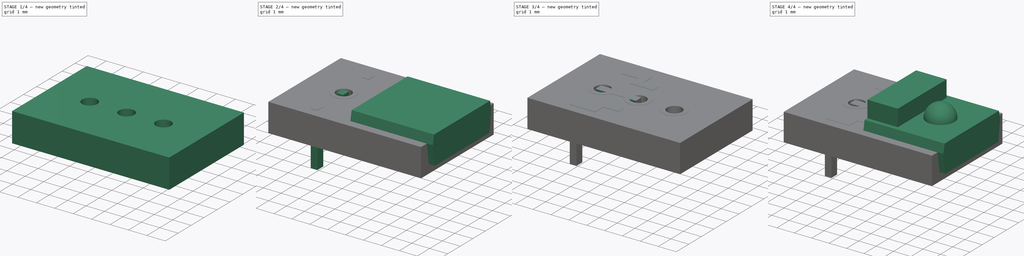
[diagram: build sequence overview — one tinted view per stage of 4, left to right]
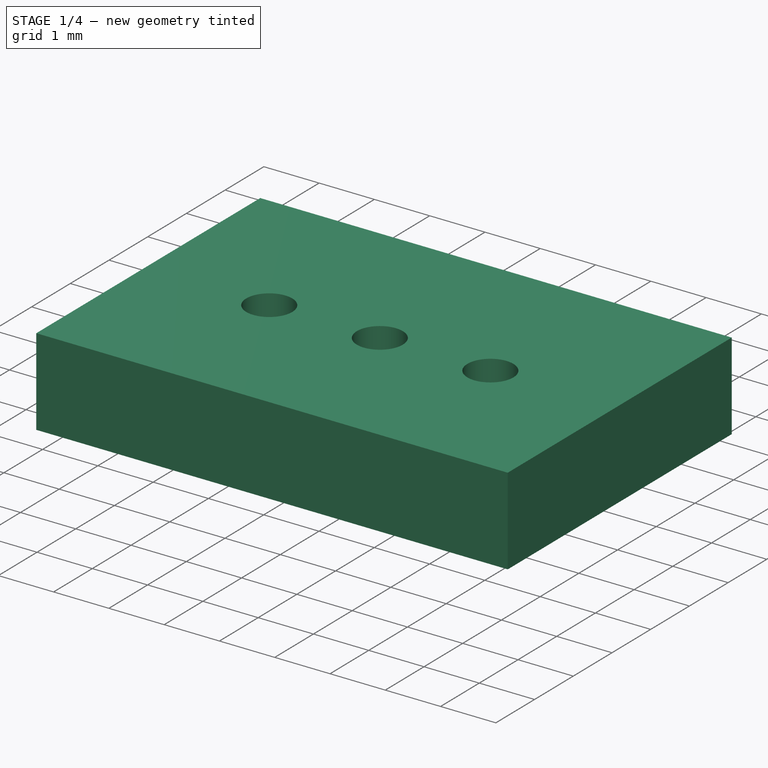
[diagram: stage 1 of 4 — iso view after this stage's code; geometry added in this stage tinted green]
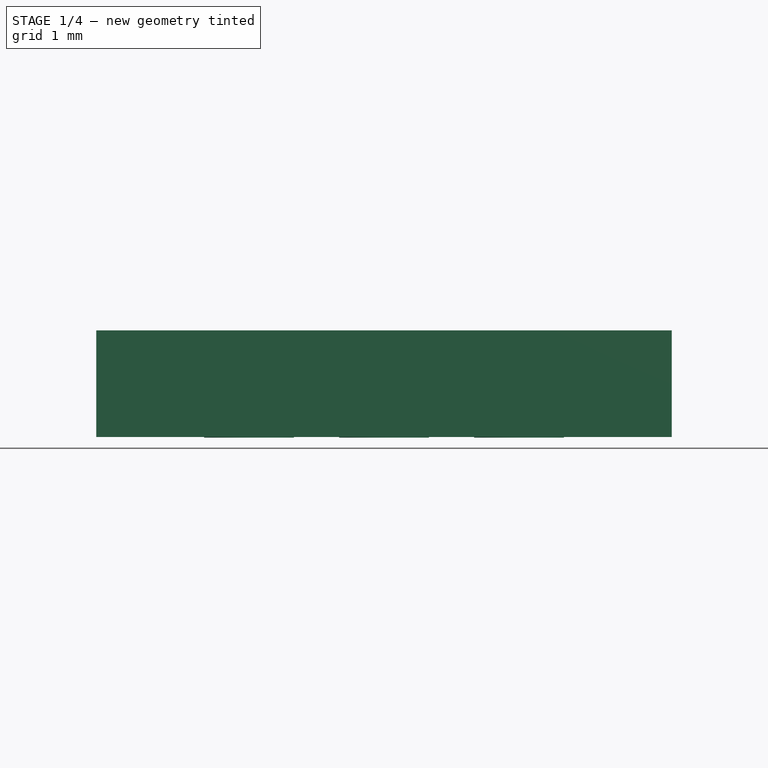
[diagram: stage 1 of 4 — front view after this stage's code; geometry added in this stage tinted green]
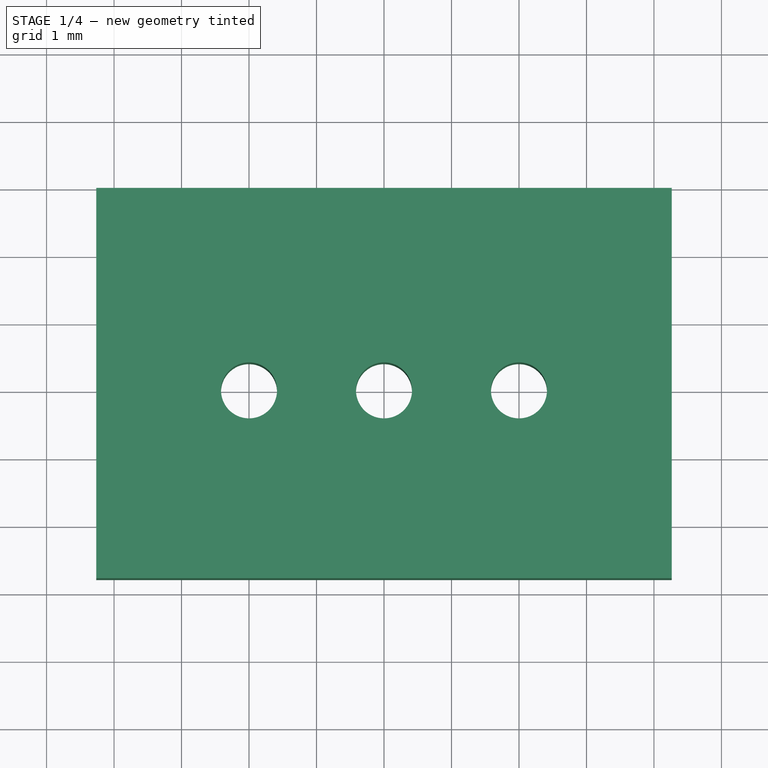
[diagram: stage 1 of 4 — top view after this stage's code; geometry added in this stage tinted green]
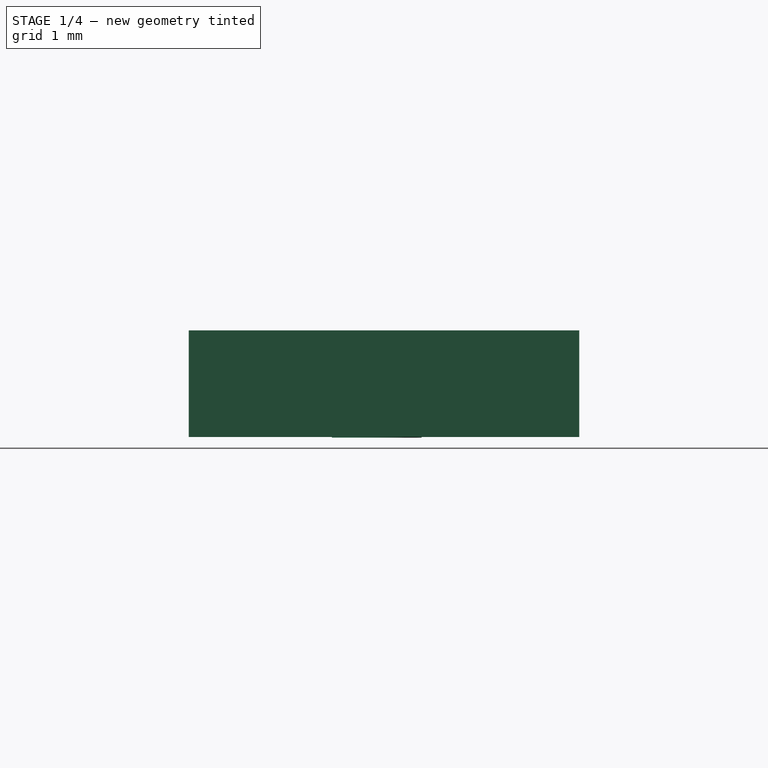
[diagram: stage 1 of 4 — right view after this stage's code; geometry added in this stage tinted green]
FCSTD DOCUMENT  (FreeCAD 0.18R4 (GitTag))
Label: TSL237
License: All rights reserved
LicenseURL: http://en.wikipedia.org/wiki/All_rights_reserved
objects: Part::FeaturePython×6, Sketcher::SketchObject×5, Part::Feature×4, PartDesign::ShapeBinder×3, Part::Compound×3, PartDesign::Pad×2, Part::Extrusion×2, PartDesign::Revolution×1, PartDesign::Body×1, Part::MultiFuse×1, App::DocumentObjectGroup×1
note: 31 computed .brp shape members not serialized (recipe doc carries the construction recipe); baked Part::Feature solids carry a one-line shape summary decoded from their .brp

FEATURE [Part::FeaturePython] BotPads  # a2plus imported part (geometry in sourceFile) (typed FeaturePython)
  fixedPosition = true
FEATURE [Part::FeaturePython] THPs  label="PTHs"  # a2plus imported part (geometry in sourceFile) (typed FeaturePython)
  fixedPosition = true
FEATURE [Part::FeaturePython] newPCB  label="Pcb"  # a2plus imported part (geometry in sourceFile) (typed FeaturePython)
  fixedPosition = true
FEATURE [App::DocumentObjectGroup] _TSL237S_LF__fp
  Group = -> [FFab_lines,Filk_lines,TopPads,BotPads,THPs,newPCB]
FEATURE [Part::Feature] Shape  label="Fusion_sp"
  shape: bbox 4.66 x 6.853 x 4.46 mm, 63 faces, 2 solids (baked)
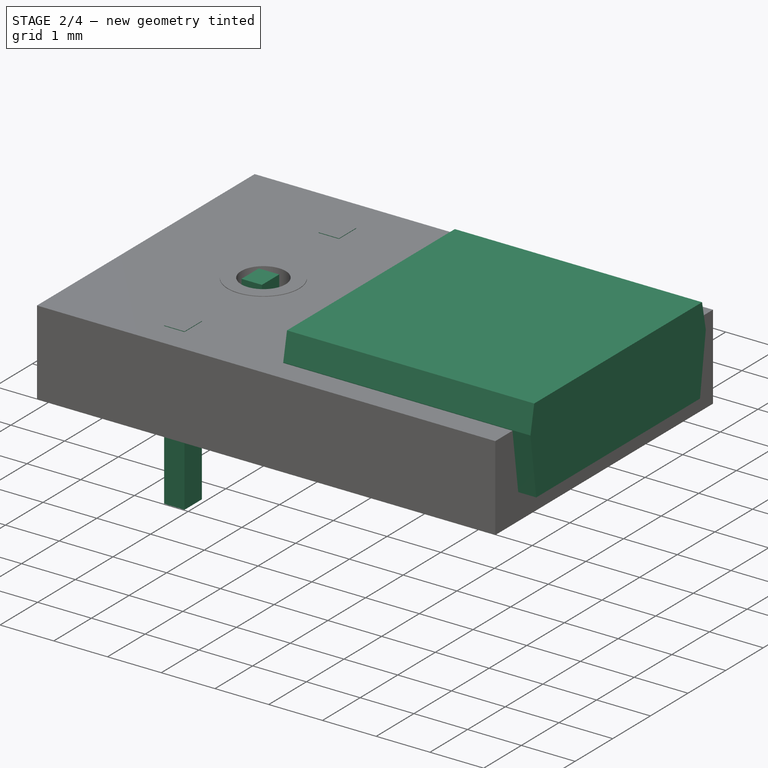
[diagram: stage 2 of 4 — iso view after this stage's code; geometry added in this stage tinted green]
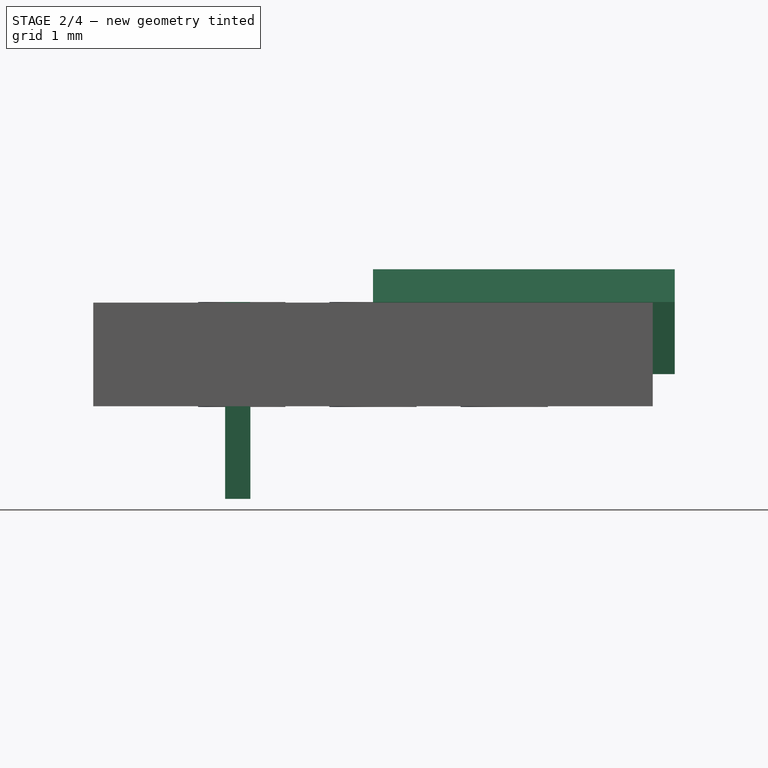
[diagram: stage 2 of 4 — front view after this stage's code; geometry added in this stage tinted green]
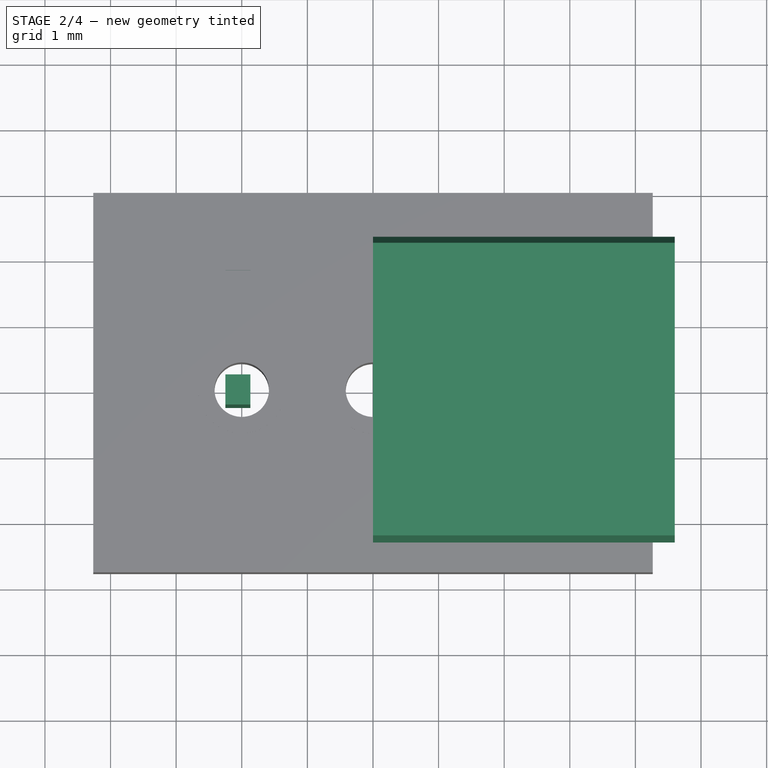
[diagram: stage 2 of 4 — top view after this stage's code; geometry added in this stage tinted green]
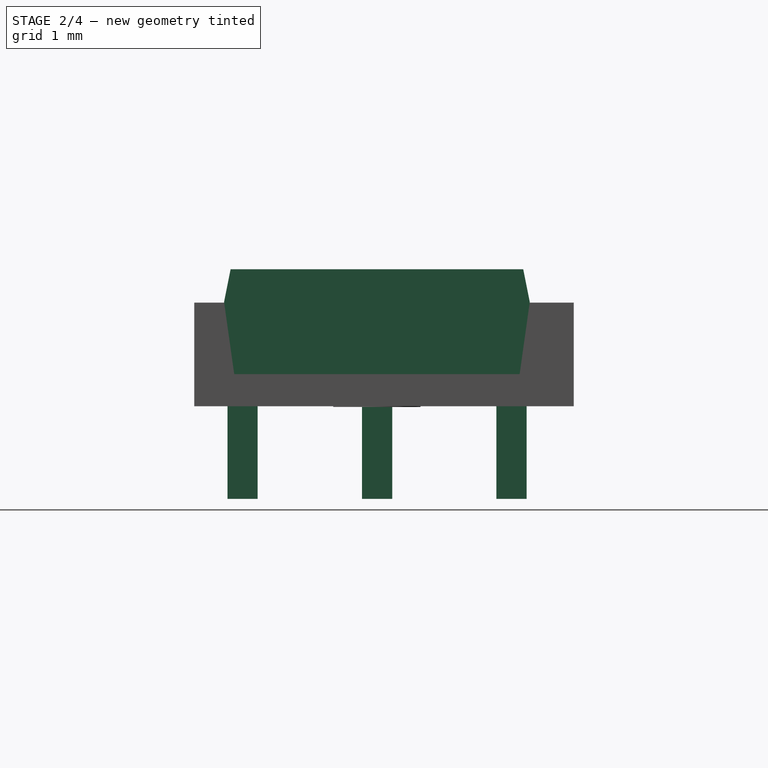
[diagram: stage 2 of 4 — right view after this stage's code; geometry added in this stage tinted green]
FEATURE [Sketcher::SketchObject] Sketch
  MapMode = 5
  Placement = pos=(0,0,0) rot=(0.57735,0.57735,0.57735;2.0944rad)
  Support = -> [YZ_Plane]
  sketch-geometry (9):
    g0: LineSegment [constr] StartX=2.33 StartY=0 StartZ=0 EndX=-2.33 EndY=0 EndZ=0
    g1: LineSegment StartX=-2.175 StartY=-1.1 StartZ=0 EndX=2.175 EndY=-1.1 EndZ=0
    g2: LineSegment StartX=-2.33 StartY=0 StartZ=0 EndX=-2.175 EndY=-1.1 EndZ=0
    g3: LineSegment StartX=2.175 StartY=-1.1 StartZ=0 EndX=2.33 EndY=0 EndZ=0
    g4: LineSegment [constr] StartX=0 StartY=0 StartZ=0 EndX=0 EndY=-1.1 EndZ=0
    g5: LineSegment StartX=-2.23 StartY=0.5 StartZ=0 EndX=2.23 EndY=0.5 EndZ=0
    g6: LineSegment StartX=2.23 StartY=0.5 StartZ=0 EndX=2.33 EndY=0 EndZ=0
    g7: LineSegment StartX=-2.23 StartY=0.5 StartZ=0 EndX=-2.33 EndY=0 EndZ=0
    g8: LineSegment [constr] StartX=0 StartY=0.5 StartZ=0 EndX=0 EndY=0 EndZ=0
  constraints (23):
    c: Horizontal(g0)
    c: DistanceX(g0,g0) = 4.66
    c: Symmetric(g0,g0,g-1)
    c: Horizontal(g1)
    c: Coincident(g2,g0)
    c: Coincident(g2,g1)
    c: Coincident(g3,g1)
    c: Coincident(g4,g-1)
    c: PointOnObject(g4,g-2)
    c: DistanceY(g4,g4) = 1.1
    c: Symmetric(g1,g1,g4)
    c: DistanceX(g1,g1) = 4.35
    c: Coincident(g0,g3)
    c: Horizontal(g5)
    c: DistanceX(g5,g5) = 4.46
    c: Vertical(g8)
    c: DistanceY(g8,g8) = 0.5
    c: Coincident(g8,g-1)
    c: Symmetric(g5,g5,g8)
    c: Coincident(g5,g7)
    c: Coincident(g7,g0)
    c: Coincident(g6,g5)
    c: Coincident(g6,g0)
FEATURE [PartDesign::Pad] Pad
  Length = 4.6
  Length2 = 100
  Placement = pos=(0,0,0) rot=(0.57735,0.57735,0.57735;2.0944rad)
  Profile = -> Sketch
  Type = 0
FEATURE [PartDesign::ShapeBinder] ShapeBinder002
  Support = -> [Extrude]
  TraceSupport = false
FEATURE [Sketcher::SketchObject] Sketch004
  MapMode = 5
  Support = -> [XY_Plane]
  sketch-geometry (12):
    g0: LineSegment StartX=-2.24904 StartY=2.28119 StartZ=0 EndX=-1.86904 EndY=2.28119 EndZ=0
    g1: LineSegment StartX=-1.86904 StartY=2.28119 StartZ=0 EndX=-1.86904 EndY=1.82119 EndZ=0
    g2: LineSegment StartX=-1.86904 StartY=1.82119 StartZ=0 EndX=-2.24904 EndY=1.82119 EndZ=0
    g3: LineSegment StartX=-2.24904 StartY=1.82119 StartZ=0 EndX=-2.24904 EndY=2.28119 EndZ=0
    g4: LineSegment StartX=-2.24963 StartY=0.233068 StartZ=0 EndX=-1.86963 EndY=0.233068 EndZ=0
    g5: LineSegment StartX=-1.86963 StartY=0.233068 StartZ=0 EndX=-1.86963 EndY=-0.226932 EndZ=0
    g6: LineSegment StartX=-1.86963 StartY=-0.226932 StartZ=0 EndX=-2.24963 EndY=-0.226932 EndZ=0
    g7: LineSegment StartX=-2.24963 StartY=-0.226932 StartZ=0 EndX=-2.24963 EndY=0.233068 EndZ=0
    g8: LineSegment StartX=-2.25304 StartY=-1.81802 StartZ=0 EndX=-1.87304 EndY=-1.81802 EndZ=0
    g9: LineSegment StartX=-1.87304 StartY=-1.81802 StartZ=0 EndX=-1.87304 EndY=-2.27802 EndZ=0
    g10: LineSegment StartX=-1.87304 StartY=-2.27802 StartZ=0 EndX=-2.25304 EndY=-2.27802 EndZ=0
    g11: LineSegment StartX=-2.25304 StartY=-2.27802 StartZ=0 EndX=-2.25304 EndY=-1.81802 EndZ=0
  constraints (30):
    c: Coincident(g0,g1)
    c: Coincident(g1,g2)
    c: Coincident(g2,g3)
    c: Coincident(g3,g0)
    c: Horizontal(g0)
    c: Horizontal(g2)
    c: Vertical(g1)
    c: Vertical(g3)
    c: DistanceX(g2,g2) = 0.38
    c: DistanceY(g1,g1) = 0.46
    c: Coincident(g4,g5)
    c: Coincident(g5,g6)
    c: Coincident(g6,g7)
    c: Coincident(g7,g4)
    c: Horizontal(g4)
    c: Horizontal(g6)
    c: Vertical(g5)
    c: Vertical(g7)
    c: Coincident(g8,g9)
    c: Coincident(g9,g10)
    c: Coincident(g10,g11)
    c: Coincident(g11,g8)
    c: Horizontal(g8)
    c: Horizontal(g10)
    c: Vertical(g9)
    c: Vertical(g11)
    c: DistanceY(g7,g7) = 0.46
    c: DistanceX(g6,g6) = 0.38
    c: DistanceY(g11,g11) = 0.46
    c: DistanceX(g8,g8) = 0.38
FEATURE [PartDesign::Body] Body
  Group = -> [Sketch,Pad,ShapeBinder,Sketch001,Pad001,Sketch002,Revolution,ShapeBinder001,Sketch003,ShapeBinder002,Sketch004]
  Origin = -> Origin
  Tip = -> Revolution
FEATURE [Part::Extrusion] Extrude001
  Base = -> Sketch004
  Dir = (0,0,1)
  DirMode = 2
  FaceMakerClass = Part::FaceMakerBullseye
  LengthFwd = 3
  LengthRev = 0
  Reversed = true
  Solid = true
  Symmetric = false
FEATURE [Part::FeaturePython] FFab_lines  label="FFab"  # a2plus imported part (geometry in sourceFile) (typed FeaturePython)
  fixedPosition = true
FEATURE [Part::FeaturePython] Filk_lines  label="FrontSilk"  # a2plus imported part (geometry in sourceFile) (typed FeaturePython)
  fixedPosition = true
FEATURE [Part::FeaturePython] TopPads  # a2plus imported part (geometry in sourceFile) (typed FeaturePython)
  fixedPosition = true
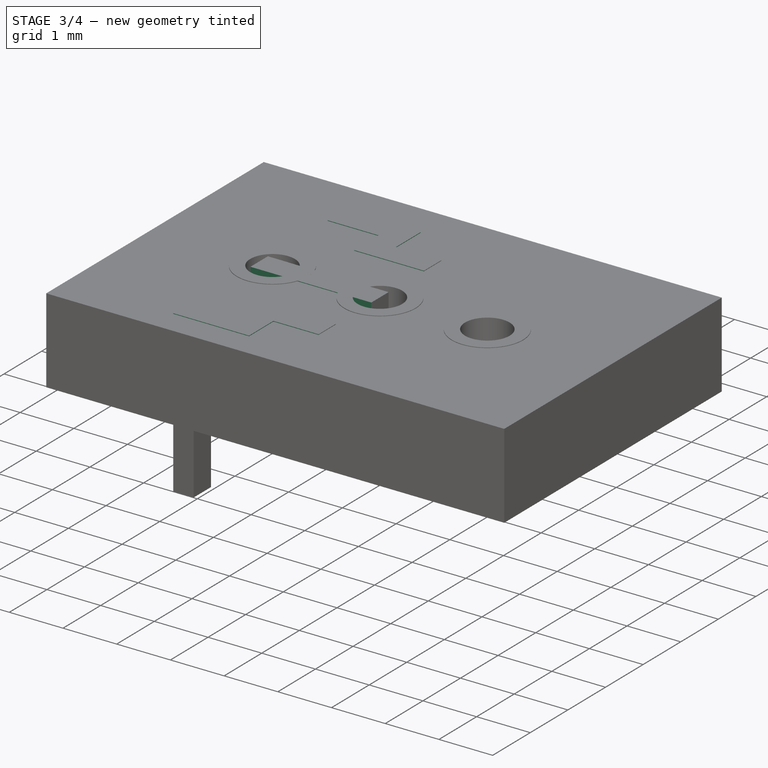
[diagram: stage 3 of 4 — iso view after this stage's code; geometry added in this stage tinted green]
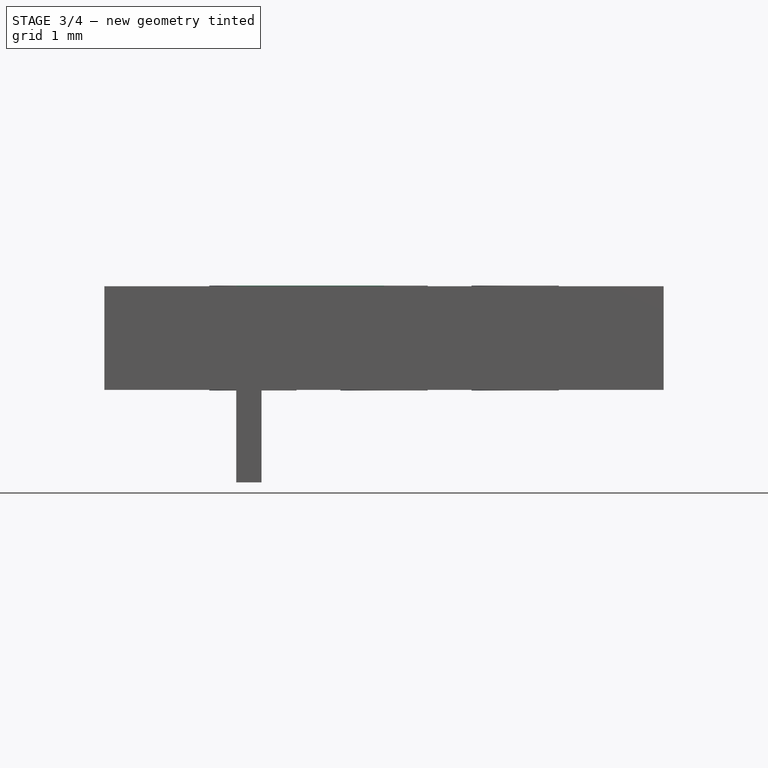
[diagram: stage 3 of 4 — front view after this stage's code; geometry added in this stage tinted green]
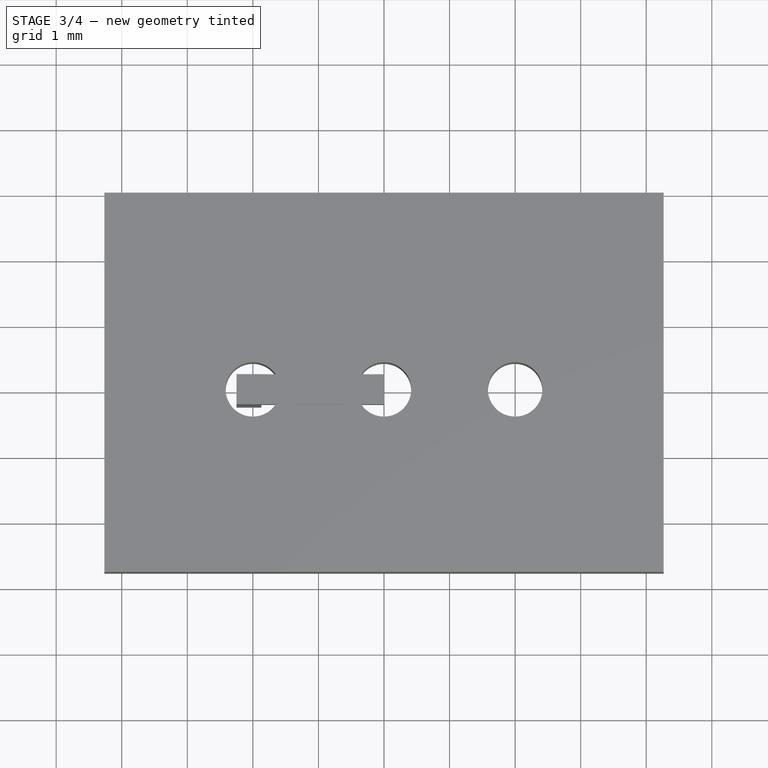
[diagram: stage 3 of 4 — top view after this stage's code; geometry added in this stage tinted green]
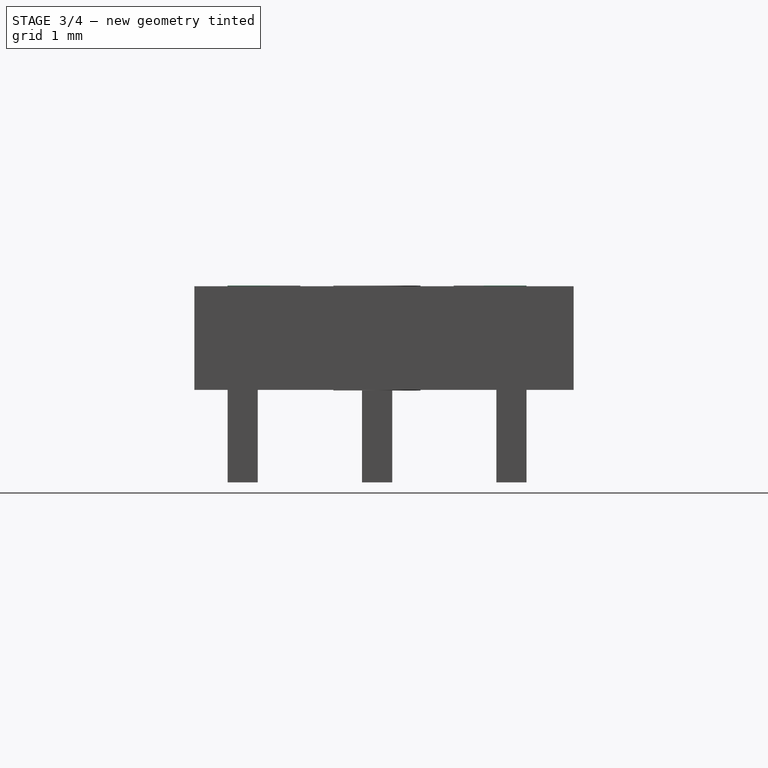
[diagram: stage 3 of 4 — right view after this stage's code; geometry added in this stage tinted green]
FEATURE [PartDesign::ShapeBinder] ShapeBinder001
  Placement = pos=(0,0,0) rot=(0.57735,0.57735,0.57735;2.0944rad)
  Support = -> [Revolution]
  TraceSupport = false
FEATURE [Sketcher::SketchObject] Sketch003
  ExternalGeometry = -> [ShapeBinder]
  MapMode = 5
  Support = -> [XY_Plane]
  sketch-geometry (27):
    g0: LineSegment StartX=0 StartY=0.23 StartZ=0 EndX=-2.25 EndY=0.23 EndZ=0
    g1: LineSegment StartX=-2.25 StartY=0.23 StartZ=0 EndX=-2.25 EndY=-0.23 EndZ=0
    g2: LineSegment StartX=-2.25 StartY=-0.23 StartZ=0 EndX=0 EndY=-0.23 EndZ=0
    g3: LineSegment StartX=0 StartY=-0.23 StartZ=0 EndX=0 EndY=0.23 EndZ=0
    g4: LineSegment [constr] StartX=1e-16 StartY=1.4 StartZ=0 EndX=-2.62174 EndY=1.4 EndZ=0
    g5: LineSegment [constr] StartX=-1.3 StartY=1.63 StartZ=0 EndX=0 EndY=1.63 EndZ=0
    g6: LineSegment StartX=0 StartY=1.63 StartZ=0 EndX=0 EndY=1.17 EndZ=0
    g7: LineSegment StartX=0 StartY=1.17 StartZ=0 EndX=-1.3 EndY=1.17 EndZ=0
    g8: LineSegment StartX=-1.3 StartY=1.17 StartZ=0 EndX=-1.3 EndY=1.63 EndZ=0
    g9: LineSegment StartX=0 StartY=1.63 StartZ=0 EndX=-0.84 EndY=1.63 EndZ=0
    g10: LineSegment StartX=-0.84 StartY=2.28 StartZ=0 EndX=-0.84 EndY=1.63 EndZ=0
    g11: LineSegment StartX=-0.84 StartY=2.28 StartZ=0 EndX=-2.25 EndY=2.28 EndZ=0
    g12: LineSegment StartX=-1.3 StartY=1.82 StartZ=0 EndX=-1.3 EndY=1.63 EndZ=0
    g13: LineSegment StartX=-1.3 StartY=1.82 StartZ=0 EndX=-2.25 EndY=1.82 EndZ=0
    g14: LineSegment StartX=-2.25 StartY=2.28 StartZ=0 EndX=-2.25 EndY=1.82 EndZ=0
    g15: LineSegment [constr] StartX=0 StartY=0 StartZ=0 EndX=-3.11924 EndY=0 EndZ=0
    g16: LineSegment StartX=-0.000877907 StartY=-1.63 StartZ=0 EndX=-0.000877907 EndY=-1.17 EndZ=0
    g17: LineSegment StartX=-0.000877907 StartY=-1.63 StartZ=0 EndX=-0.84143 EndY=-1.63 EndZ=0
    g18: LineSegment StartX=-0.000877907 StartY=-1.17 StartZ=0 EndX=-1.30114 EndY=-1.17 EndZ=0
    g19: LineSegment StartX=-1.30114 StartY=-1.17 StartZ=0 EndX=-1.30114 EndY=-1.63 EndZ=0
    g20: LineSegment [constr] StartX=-1.30114 StartY=-1.63 StartZ=0 EndX=-0.000877907 EndY=-1.63 EndZ=0
    g21: LineSegment [constr] StartX=-0.000877907 StartY=-1.4 StartZ=0 EndX=-2.62262 EndY=-1.4 EndZ=0
    g22: LineSegment StartX=-1.30114 StartY=-1.81859 StartZ=0 EndX=-2.25143 EndY=-1.81859 EndZ=0
    g23: LineSegment StartX=-1.30114 StartY=-1.81859 StartZ=0 EndX=-1.30114 EndY=-1.63 EndZ=0
    g24: LineSegment StartX=-0.84143 StartY=-2.27859 StartZ=0 EndX=-0.84143 EndY=-1.63 EndZ=0
    g25: LineSegment StartX=-0.84143 StartY=-2.27859 StartZ=0 EndX=-2.25143 EndY=-2.27859 EndZ=0
    g26: LineSegment StartX=-2.25143 StartY=-2.27859 StartZ=0 EndX=-2.25143 EndY=-1.81859 EndZ=0
  constraints (67):
    c: Coincident(g0,g1)
    c: Coincident(g1,g2)
    c: Coincident(g2,g3)
    c: Coincident(g3,g0)
    c: Horizontal(g0)
    c: Horizontal(g2)
    c: Vertical(g1)
    c: Vertical(g3)
    c: DistanceX(g2,g2) = 2.25
    c: Symmetric(g0,g2,g-1)
    c: DistanceY(g1,g1) = 0.46
    c: Horizontal(g4)
    c: Coincident(g5,g6)
    c: Coincident(g6,g7)
    c: Coincident(g7,g8)
    c: Coincident(g8,g5)
    c: Horizontal(g5)
    c: Horizontal(g7)
    c: Vertical(g6)
    c: Vertical(g8)
    c: DistanceY(g8,g8) = 0.46
    c: DistanceX(g5,g5) = 1.3
    c: PointOnObject(g4,g-3)
    c: DistanceY(g-1,g4) = 1.4
    c: Horizontal(g9)
    c: DistanceX(g9,g9) = 0.84
    c: Coincident(g9,g6)
    c: Vertical(g10)
    c: DistanceY(g10,g10) = 0.65
    c: Coincident(g10,g9)
    c: Horizontal(g11)
    c: DistanceX(g11,g11) = 1.41
    c: Coincident(g11,g10)
    c: Symmetric(g6,g6,g4)
    c: Vertical(g12)
    c: DistanceY(g12,g12) = 0.19
    c: Coincident(g12,g8)
    c: Horizontal(g13)
    c: DistanceX(g13,g13) = 0.95
    c: Coincident(g13,g12)
    c: Coincident(g14,g11)
    c: Coincident(g14,g13)
    c: Coincident(g15,g-1)
    c: Horizontal(g15)
    c: Horizontal(g21)
    c: Coincident(g20,g16)
    c: Coincident(g16,g18)
    c: Coincident(g18,g19)
    c: Coincident(g19,g20)
    c: Horizontal(g20)
    c: Horizontal(g18)
    c: Vertical(g16)
    c: Vertical(g19)
    c: Horizontal(g17)
    c: Coincident(g17,g16)
    c: Vertical(g24)
    c: Coincident(g24,g17)
    c: Horizontal(g25)
    c: Coincident(g25,g24)
    c: Symmetric(g16,g16,g21)
    c: Vertical(g23)
    c: Coincident(g23,g19)
    c: Horizontal(g22)
    c: Coincident(g22,g23)
    c: Coincident(g26,g25)
    c: Coincident(g26,g22)
    c: Vertical(g26)
FEATURE [Part::Extrusion] Extrude
  Base = -> Sketch003
  Dir = (0,0,1)
  DirMode = 2
  FaceMakerClass = Part::FaceMakerBullseye
  LengthFwd = 0.5
  LengthRev = 0
  Reversed = true
  Solid = true
  Symmetric = false
FEATURE [Part::Compound] Extrude_mp
  Links = -> [Extrude,Extrude001]
FEATURE [Part::Feature] Extrude_mp_cp  label="Extrude_sp"
  shape: bbox 2.253 x 4.56 x 3 mm, 46 faces, 6 solids (baked)
FEATURE [Part::Compound] Extrude_sp_mp
  Links = -> [Extrude_mp_cp,Extrude_mp]
FEATURE [Part::Feature] Extrude_sp_mp_cp  label="Extrude_sp_sp"
  shape: bbox 2.253 x 4.56 x 3 mm, 92 faces, 12 solids (baked)
FEATURE [Part::Compound] Extrude_sp_sp_mp
  Links = -> [Extrude_sp_mp_cp,Extrude_sp_mp]
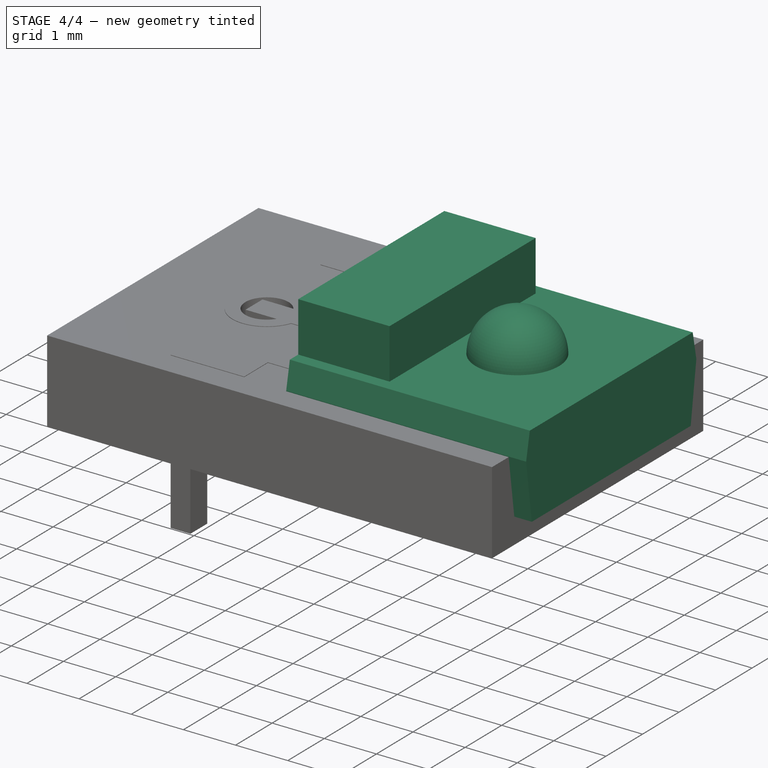
[diagram: stage 4 of 4 — iso view after this stage's code; geometry added in this stage tinted green]
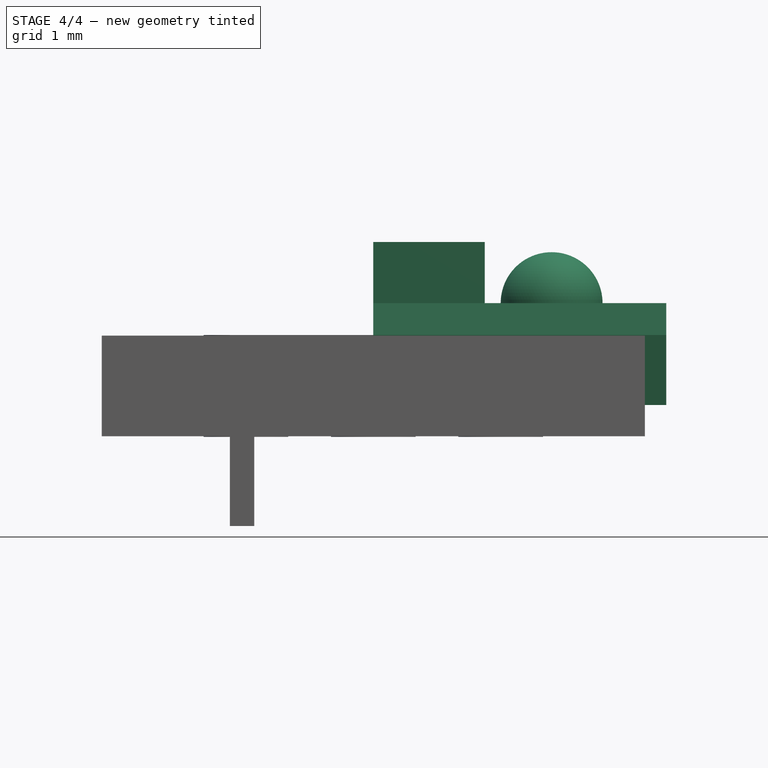
[diagram: stage 4 of 4 — front view after this stage's code; geometry added in this stage tinted green]
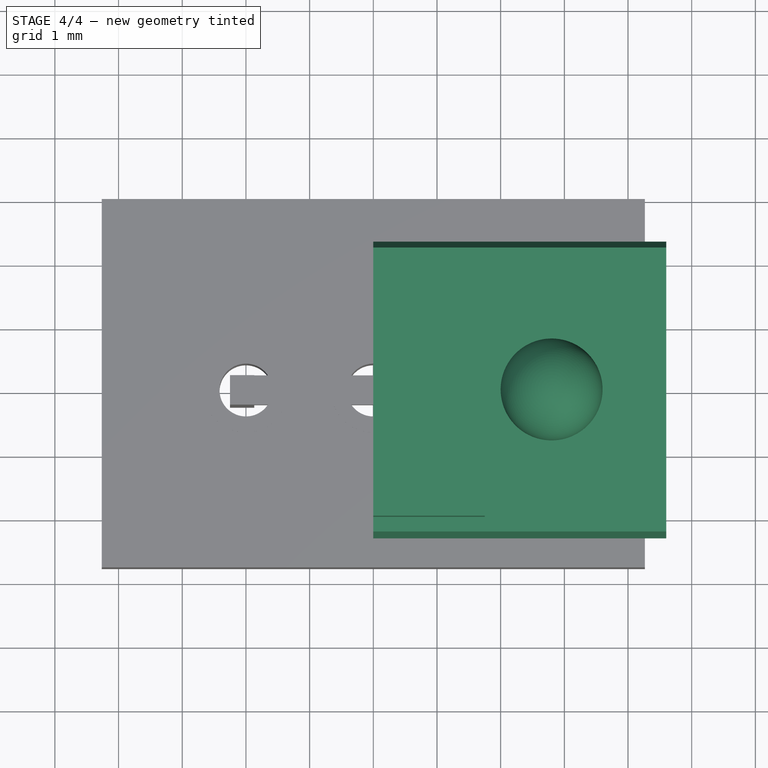
[diagram: stage 4 of 4 — top view after this stage's code; geometry added in this stage tinted green]
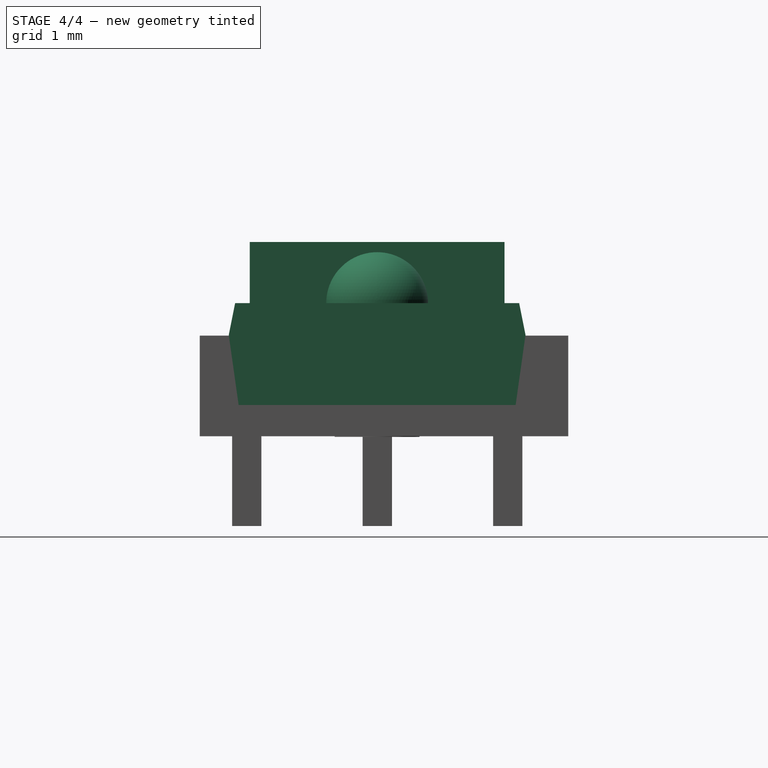
[diagram: stage 4 of 4 — right view after this stage's code; geometry added in this stage tinted green]
FEATURE [PartDesign::ShapeBinder] ShapeBinder
  Placement = pos=(0,0,0) rot=(0.57735,0.57735,0.57735;2.0944rad)
  Support = -> [Pad]
  TraceSupport = false
FEATURE [Sketcher::SketchObject] Sketch001
  AttachmentOffset = pos=(0,0,0.5) rot=(0,0,1;0rad)
  ExternalGeometry = -> [ShapeBinder]
  MapMode = 5
  Placement = pos=(0,0,0.5) rot=(0,0,1;0rad)
  Support = -> [XY_Plane]
  sketch-geometry (4):
    g0: LineSegment StartX=0 StartY=2 StartZ=0 EndX=1.75 EndY=2 EndZ=0
    g1: LineSegment StartX=1.75 StartY=2 StartZ=0 EndX=1.75 EndY=-2 EndZ=0
    g2: LineSegment StartX=1.75 StartY=-2 StartZ=0 EndX=0 EndY=-2 EndZ=0
    g3: LineSegment StartX=0 StartY=-2 StartZ=0 EndX=0 EndY=2 EndZ=0
  constraints (11):
    c: Coincident(g0,g1)
    c: Coincident(g1,g2)
    c: Coincident(g2,g3)
    c: Coincident(g3,g0)
    c: Horizontal(g0)
    c: Horizontal(g2)
    c: Vertical(g1)
    c: Vertical(g3)
    c: DistanceY(g3,g3) = 4
    c: DistanceX(g2,g2) = 1.75
    c: Symmetric(g0,g2,g-1)
FEATURE [PartDesign::Pad] Pad001
  BaseFeature = -> Pad
  Length = 0.96
  Length2 = 0.0001
  Placement = pos=(0,0,0) rot=(0.57735,0.57735,0.57735;2.0944rad)
  Profile = -> Sketch001
  Type = 0
FEATURE [Sketcher::SketchObject] Sketch002
  ExternalGeometry = -> [ShapeBinder]
  MapMode = 5
  Placement = pos=(0,0,0) rot=(1,0,0;1.5708rad)
  Support = -> [XZ_Plane]
  sketch-geometry (4):
    g0: LineSegment StartX=2.8 StartY=1.3 StartZ=0 EndX=2.8 EndY=0.5 EndZ=0
    g1: ArcOfCircle CenterX=2.8 CenterY=0.5 CenterZ=0 NormalX=0 NormalY=0 NormalZ=1 AngleXU=0 Radius=0.8 StartAngle=0 EndAngle=1.5708
    g2: LineSegment StartX=2.8 StartY=0.5 StartZ=0 EndX=3.6 EndY=0.5 EndZ=0
    g3: LineSegment [constr] StartX=2.8 StartY=0.503114 StartZ=0 EndX=2.8 EndY=1.3 EndZ=0
  constraints (11):
    c: Vertical(g0)
    c: Coincident(g1,g0)
    c: Coincident(g1,g0)
    c: Coincident(g2,g0)
    c: Horizontal(g2)
    c: Coincident(g1,g2)
    c: PointOnObject(g0,g-3)
    c: DistanceX(g0,g-3) = 1.8
    c: Radius(g1) = 0.8
    c: Vertical(g3)
    c: Coincident(g3,g0)
FEATURE [PartDesign::Revolution] Revolution
  Angle = 360
  Axis = (0,2e-16,0.796886)
  Base = (2.8,1e-16,0.503114)
  BaseFeature = -> Pad001
  Placement = pos=(0,0,0) rot=(0.57735,0.57735,0.57735;2.0944rad)
  Profile = -> Sketch002
  ReferenceAxis = -> Sketch002 [Axis0]
  Reversed = true
FEATURE [Part::Feature] Extrude_sp_sp_mp_cp  label="Extrude_sp_sp_sp"
  shape: bbox 2.253 x 4.56 x 3 mm, 184 faces, 24 solids (baked)
FEATURE [Part::MultiFuse] Fusion
  Shapes = -> [Body,Extrude_sp_sp_mp,Extrude_sp_sp_mp_cp]
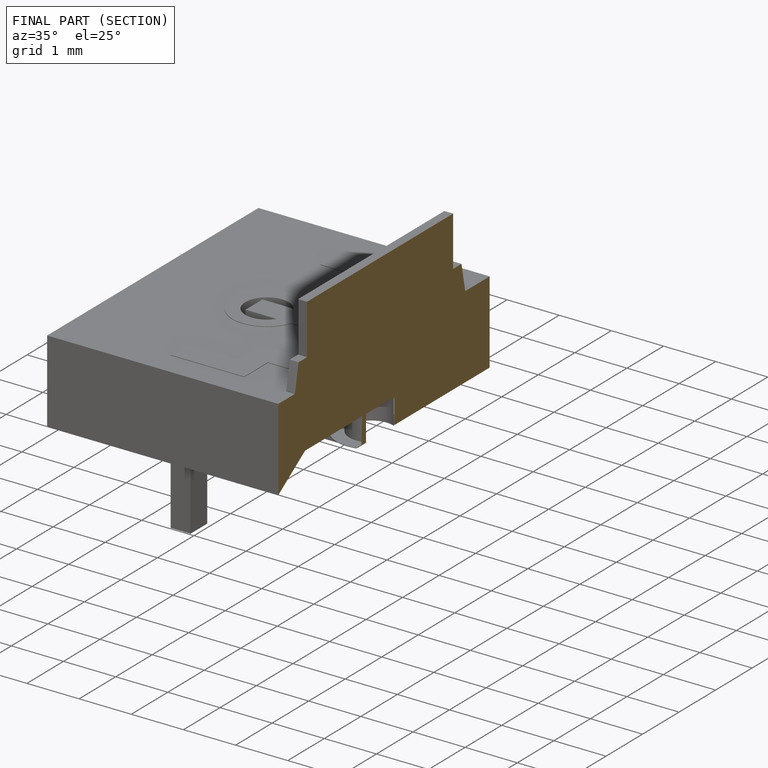
[diagram: finished part — half-section view (interior)]
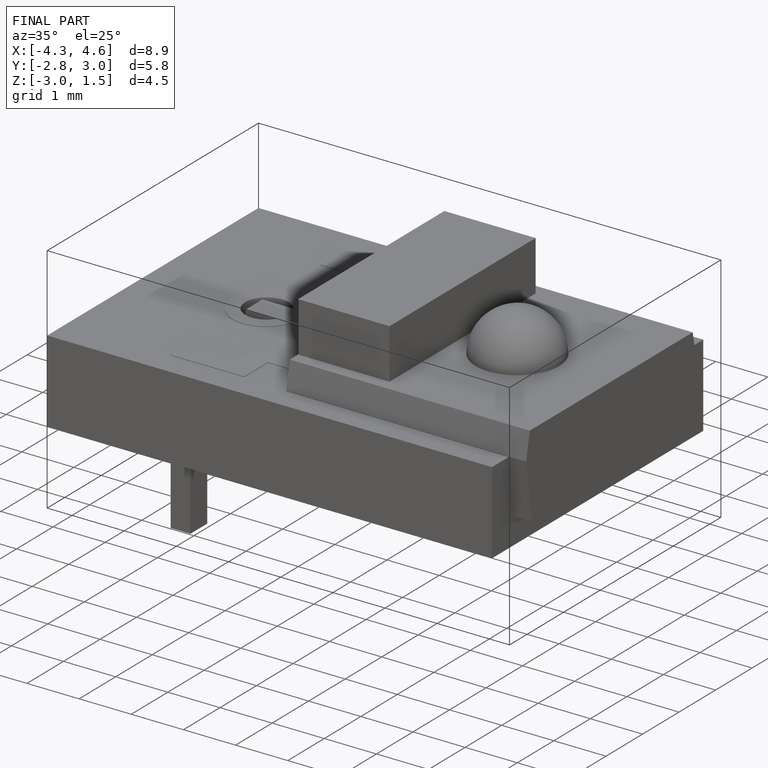
[diagram: finished part — iso view with bounding-box wireframe]
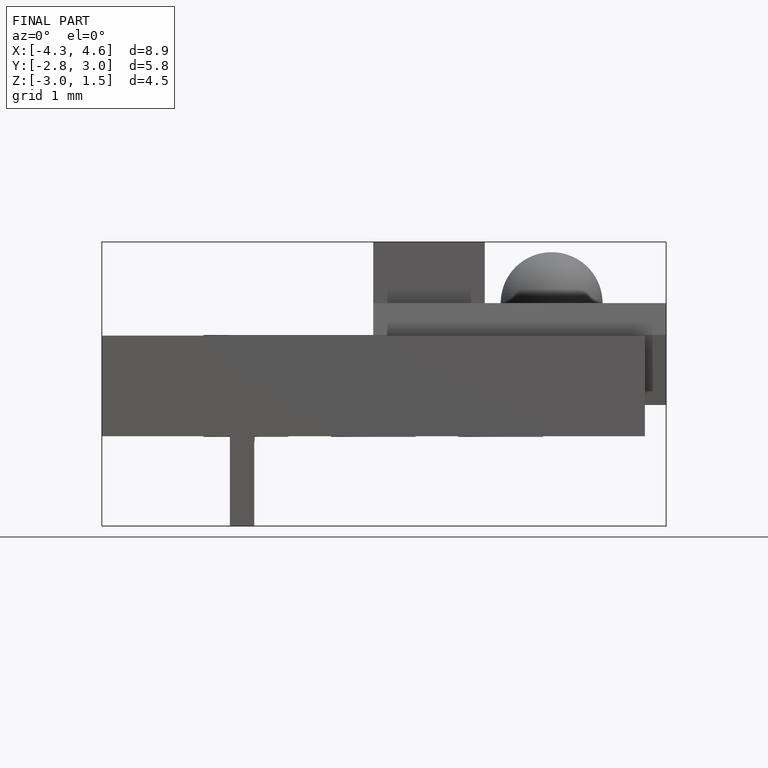
[diagram: finished part — front view with bounding-box wireframe]
